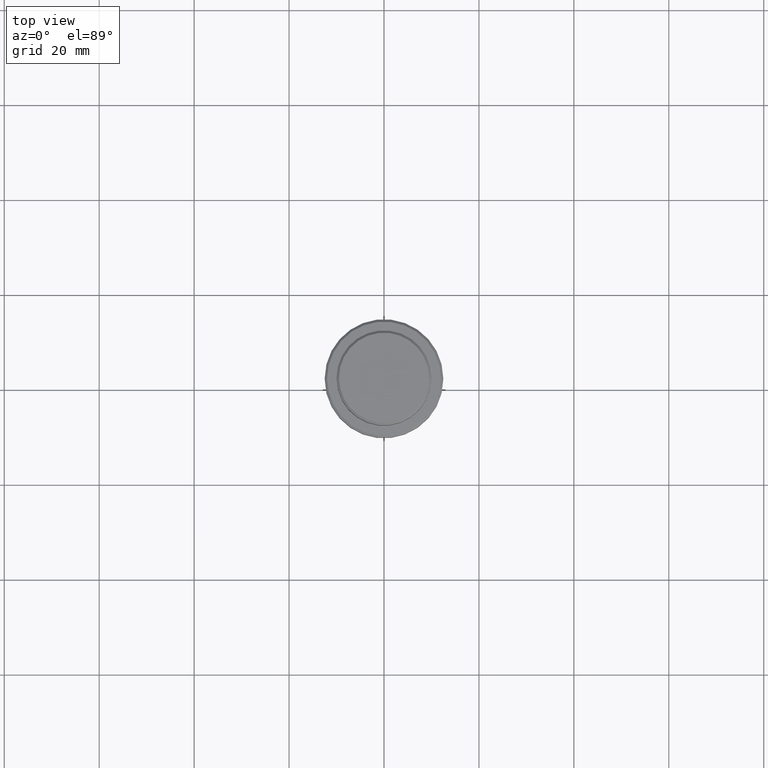
[diagram: clean part render]
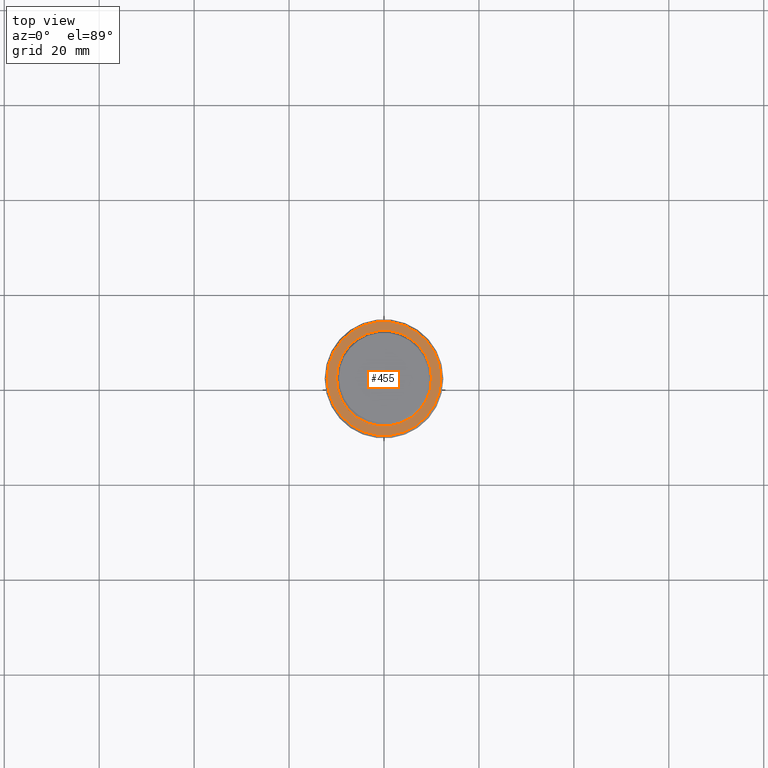
[diagram: same view with one face highlighted and labeled with its STEP entity id]
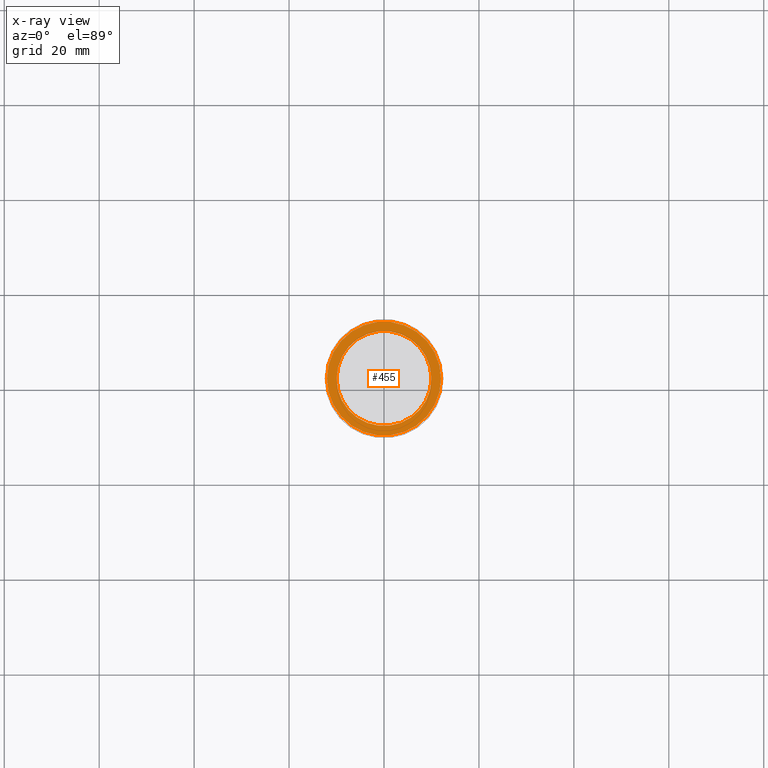
[diagram: x-ray of the same camera — body ghosted, the highlighted face saturated]
A machine part, top view. The second image highlights one B-rep face of the part: STEP entity #455.
The next image is the same camera in x-ray: the body ghosted, the highlighted face saturated — about 0% of this face is hidden behind the body in this view.
In plain terms, the highlighted planar face has unit normal (0, -0, 1).
Its self-contained STEP definition (entity closure, byte-faithful):
#30 = DIRECTION ( 'NONE',  ( 1.000000000000000000, 0.000000000000000000, 0.000000000000000000 ) ) ;
#46 = EDGE_CURVE ( 'NONE', #547, #1340, #891, .T. ) ;
#58 = AXIS2_PLACEMENT_3D ( 'NONE', #532, #640, #1087 ) ;
#81 = AXIS2_PLACEMENT_3D ( 'NONE', #129, #246, #30 ) ;
#89 = EDGE_CURVE ( 'NONE', #198, #154, #1185, .T. ) ;
#129 = CARTESIAN_POINT ( 'NONE',  ( 0.000000000000000000, 0.000000000000000000, -9.000000000000001776 ) ) ;
#154 = VERTEX_POINT ( 'NONE', #523 ) ;
#155 = DIRECTION ( 'NONE',  ( -0.000000000000000000, -0.000000000000000000, 1.000000000000000000 ) ) ;
#169 = EDGE_CURVE ( 'NONE', #1340, #547, #1030, .T. ) ;
#198 = VERTEX_POINT ( 'NONE', #1333 ) ;
#246 = DIRECTION ( 'NONE',  ( 0.000000000000000000, 0.000000000000000000, -1.000000000000000000 ) ) ;
#455 = ADVANCED_FACE ( 'NONE', ( #877, #1306 ), #619, .T. ) ;
#457 = CARTESIAN_POINT ( 'NONE',  ( 0.000000000000000000, 0.000000000000000000, -9.000000000000001776 ) ) ;
#495 = CARTESIAN_POINT ( 'NONE',  ( 0.000000000000000000, 0.000000000000000000, -9.000000000000001776 ) ) ;
#504 = CARTESIAN_POINT ( 'NONE',  ( -9.999999999999994671, 1.224646799147352665E-15, -9.000000000000001776 ) ) ;
#523 = CARTESIAN_POINT ( 'NONE',  ( -12.00000000000006573, 0.000000000000000000, -9.000000000000001776 ) ) ;
#532 = CARTESIAN_POINT ( 'NONE',  ( 0.000000000000000000, 9.499999999999994671, -9.000000000000001776 ) ) ;
#536 = AXIS2_PLACEMENT_3D ( 'NONE', #457, #1024, #904 ) ;
#547 = VERTEX_POINT ( 'NONE', #1101 ) ;
#550 = ORIENTED_EDGE ( 'NONE', *, *, #46, .T. ) ;
#595 = EDGE_LOOP ( 'NONE', ( #550, #1367 ) ) ;
#619 = PLANE ( 'NONE',  #58 ) ;
#640 = DIRECTION ( 'NONE',  ( 0.000000000000000000, -0.000000000000000000, 1.000000000000000000 ) ) ;
#683 = ORIENTED_EDGE ( 'NONE', *, *, #854, .T. ) ;
#729 = DIRECTION ( 'NONE',  ( 1.000000000000000000, 0.000000000000000000, 0.000000000000000000 ) ) ;
#854 = EDGE_CURVE ( 'NONE', #154, #198, #1383, .T. ) ;
#858 = CARTESIAN_POINT ( 'NONE',  ( 0.000000000000000000, 0.000000000000000000, -9.000000000000001776 ) ) ;
#877 = FACE_OUTER_BOUND ( 'NONE', #1182, .T. ) ;
#891 = CIRCLE ( 'NONE', #81, 9.999999999999994671 ) ;
#904 = DIRECTION ( 'NONE',  ( 1.000000000000000000, 0.000000000000000000, 0.000000000000000000 ) ) ;
#915 = AXIS2_PLACEMENT_3D ( 'NONE', #858, #956, #729 ) ;
#946 = ORIENTED_EDGE ( 'NONE', *, *, #89, .T. ) ;
#956 = DIRECTION ( 'NONE',  ( -0.000000000000000000, -0.000000000000000000, 1.000000000000000000 ) ) ;
#1024 = DIRECTION ( 'NONE',  ( 0.000000000000000000, 0.000000000000000000, -1.000000000000000000 ) ) ;
#1030 = CIRCLE ( 'NONE', #536, 9.999999999999994671 ) ;
#1069 = AXIS2_PLACEMENT_3D ( 'NONE', #495, #155, #1144 ) ;
#1087 = DIRECTION ( 'NONE',  ( 1.000000000000000000, 0.000000000000000000, 0.000000000000000000 ) ) ;
#1101 = CARTESIAN_POINT ( 'NONE',  ( 9.999999999999994671, 0.000000000000000000, -9.000000000000001776 ) ) ;
#1144 = DIRECTION ( 'NONE',  ( 1.000000000000000000, 0.000000000000000000, 0.000000000000000000 ) ) ;
#1182 = EDGE_LOOP ( 'NONE', ( #683, #946 ) ) ;
#1185 = CIRCLE ( 'NONE', #915, 12.00000000000006573 ) ;
#1306 = FACE_BOUND ( 'NONE', #595, .T. ) ;
#1333 = CARTESIAN_POINT ( 'NONE',  ( 12.00000000000006573, 1.500192328955511679E-15, -9.000000000000001776 ) ) ;
#1340 = VERTEX_POINT ( 'NONE', #504 ) ;
#1367 = ORIENTED_EDGE ( 'NONE', *, *, #169, .T. ) ;
#1383 = CIRCLE ( 'NONE', #1069, 12.00000000000006573 ) ;